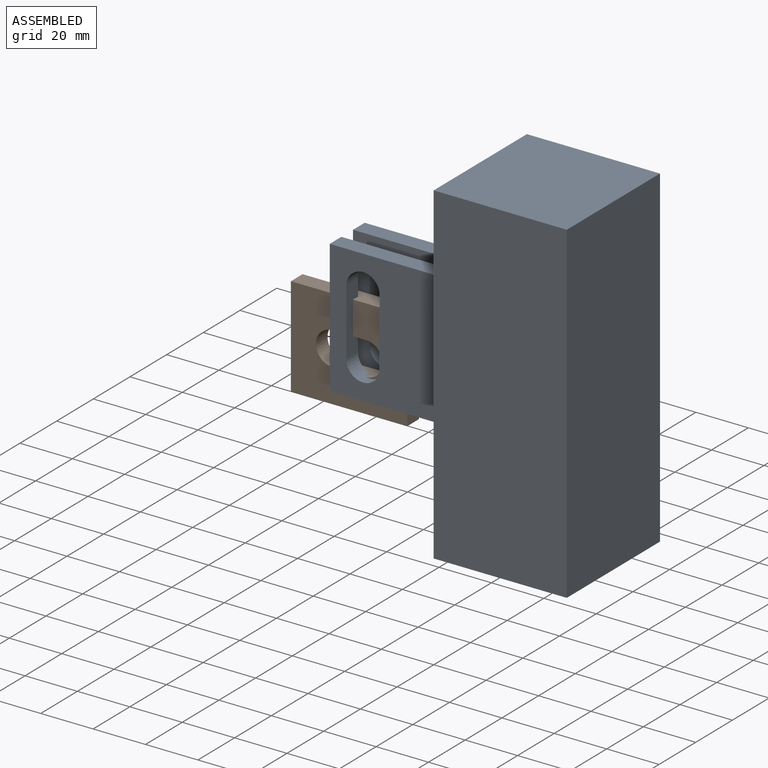
[diagram: assembled view]
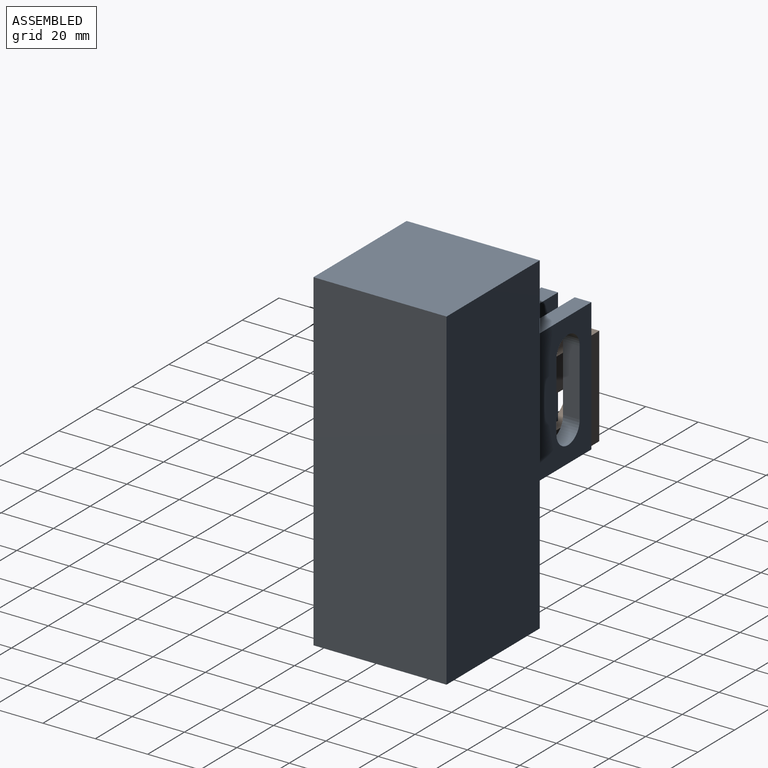
[diagram: assembled view, second angle]
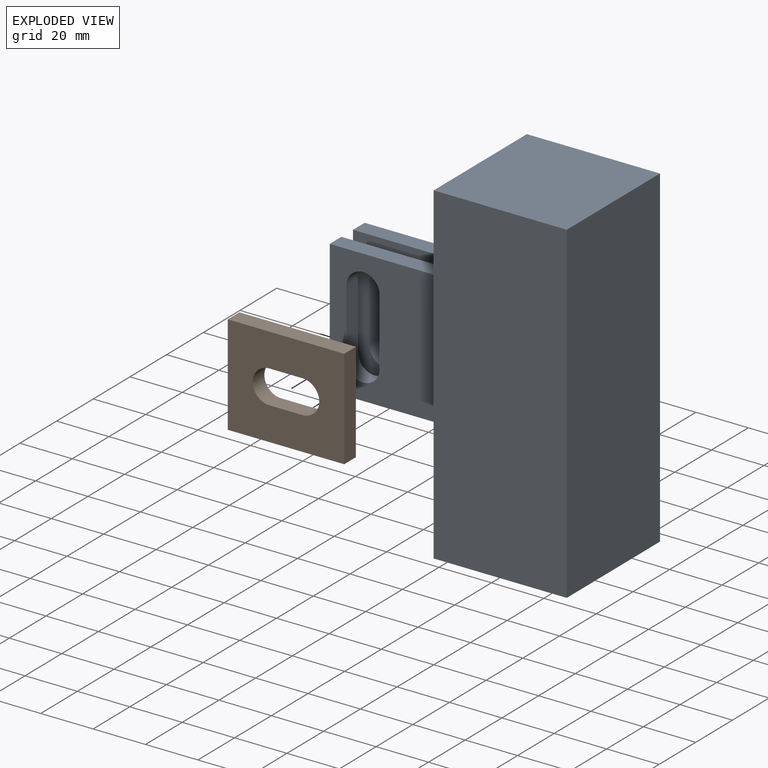
[diagram: exploded view]
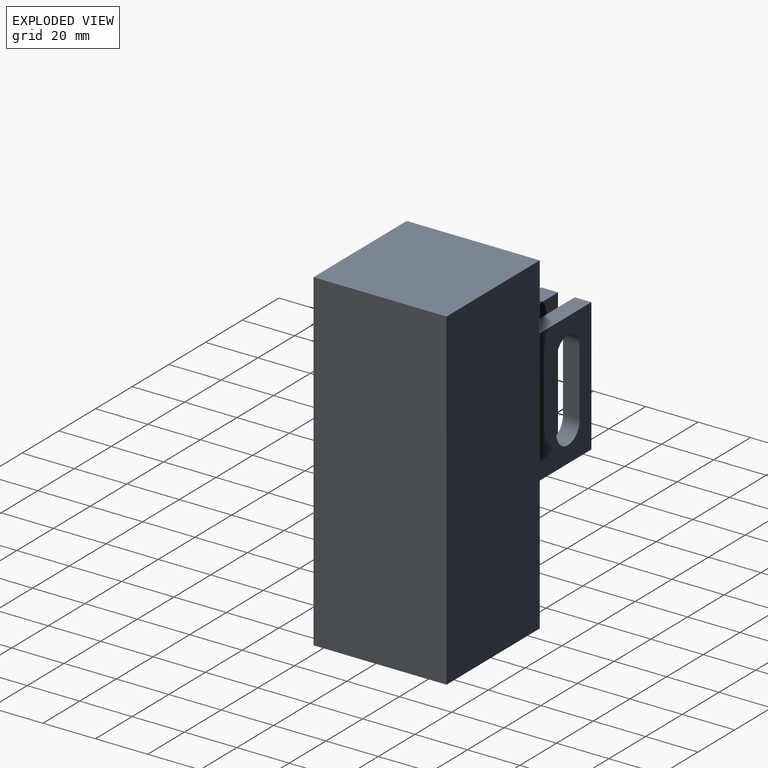
[diagram: exploded view, second angle]
ASSEMBLY  parts=2 mates=2
PART A: 24 faces, bbox 101.6x50.8x127 mm
  f0: plane 50.8x50.8mm, normal (0,-1,0), area 2131.4mm2, adj f4,f10,f11,f12,f20,f21,f22,f23
  f1: plane 50.8x50.8mm, normal (0,1,0), area 2131.4mm2, adj f4,f10,f11,f12,f20,f21,f22,f23
  f2: plane 50.8x50.8mm, normal (0,-1,0), area 2131.4mm2, adj f4,f13,f14,f15,f16,f17,f18,f19
  f3: plane 50.8x50.8mm, normal (0,1,0), area 2131.4mm2, adj f4,f13,f14,f15,f16,f17,f18,f19
  f4: plane 127x50.8mm, normal (-1,0,0), area 5806.4mm2, adj f0,f1,f2,f3,f5,f6,f7,f8
  f5: plane 50.8x50.8mm, normal (0,0,-1), area 2580.6mm2, adj f4,f6,f8,f9
  f6: plane 127x50.8mm, normal (0,1,0), area 6451.6mm2, adj f4,f5,f7,f9
  f7: plane 50.8x50.8mm, normal (0,0,1), area 2580.6mm2, adj f4,f6,f8,f9
  f8: plane 127x50.8mm, normal (0,-1,0), area 6451.6mm2, adj f4,f5,f7,f9
  f9: plane 127x50.8mm, normal (1,0,0), area 6451.6mm2, adj f5,f6,f7,f8
  f10: plane 50.8x6.35mm, normal (0,0,1), area 322.6mm2, adj f0,f1,f4,f12
  f11: plane 50.8x6.35mm, normal (0,0,-1), area 322.6mm2, adj f0,f1,f4,f12
  f12: plane 50.8x6.35mm, normal (-1,0,0), area 322.6mm2, adj f0,f1,f10,f11
  f13: plane 50.8x6.35mm, normal (0,0,-1), area 322.6mm2, adj f2,f3,f4,f15
  f14: plane 50.8x6.35mm, normal (0,0,1), area 322.6mm2, adj f2,f3,f4,f15
  f15: plane 50.8x6.35mm, normal (-1,0,0), area 322.6mm2, adj f2,f3,f13,f14
  f16: cylinder r=6.35mm len=12.7mm, axis (0,-1,0), area 126.7mm2, adj f2,f3,f17,f19
  f17: plane 25.4x6.35mm, normal (-1,0,0), area 161.3mm2, adj f2,f3,f16,f18
  f18: cylinder r=6.35mm len=12.7mm, axis (0,-1,0), area 126.7mm2, adj f2,f3,f17,f19
  f19: plane 25.4x6.35mm, normal (1,0,0), area 161.3mm2, adj f2,f3,f16,f18
  f20: plane 25.4x6.35mm, normal (1,0,0), area 161.3mm2, adj f0,f1,f21,f23
  f21: cylinder r=6.35mm len=12.7mm, axis (0,-1,0), area 126.7mm2, adj f0,f1,f20,f22
  f22: plane 25.4x6.35mm, normal (-1,0,0), area 161.3mm2, adj f0,f1,f21,f23
  f23: cylinder r=6.35mm len=12.7mm, axis (0,-1,0), area 126.7mm2, adj f0,f1,f20,f22
PART B: 10 faces, bbox 44.5x6.4x38.1 mm
  f0: plane 44.45x38.1mm, normal (0,-1,0), area 1405.6mm2, adj f2,f3,f4,f5,f6,f7,f8,f9
  f1: plane 44.45x38.1mm, normal (0,1,0), area 1405.6mm2, adj f2,f3,f4,f5,f6,f7,f8,f9
  f2: plane 38.1x6.35mm, normal (-1,0,0), area 241.9mm2, adj f0,f1,f3,f5
  f3: plane 44.45x6.35mm, normal (0,0,-1), area 282.3mm2, adj f0,f1,f2,f4
  f4: plane 38.1x6.35mm, normal (1,0,0), area 241.9mm2, adj f0,f1,f3,f5
  f5: plane 44.45x6.35mm, normal (0,0,1), area 282.3mm2, adj f0,f1,f2,f4
  f6: plane 12.7x6.35mm, normal (0,0,1), area 80.6mm2, adj f0,f1,f7,f9
  f7: cylinder r=6.35mm len=12.7mm, axis (0,-1,0), area 126.7mm2, adj f0,f1,f6,f8
  f8: plane 12.7x6.35mm, normal (0,0,-1), area 80.6mm2, adj f0,f1,f7,f9
  f9: cylinder r=6.35mm len=12.7mm, axis (0,-1,0), area 126.7mm2, adj f0,f1,f6,f8
PLACE A t=(-1.74,44.98,5.48)mm
PLACE B t=(-69.87,42.24,37.38)mm
MATE parallel B.f0 <-> A.f1  axis (0,-1,0) through (-41.3,39.06,62.78)mm
MATE parallel B.f1 <-> A.f2  axis (0,1,0) through (-47.65,45.41,56.43)mm
